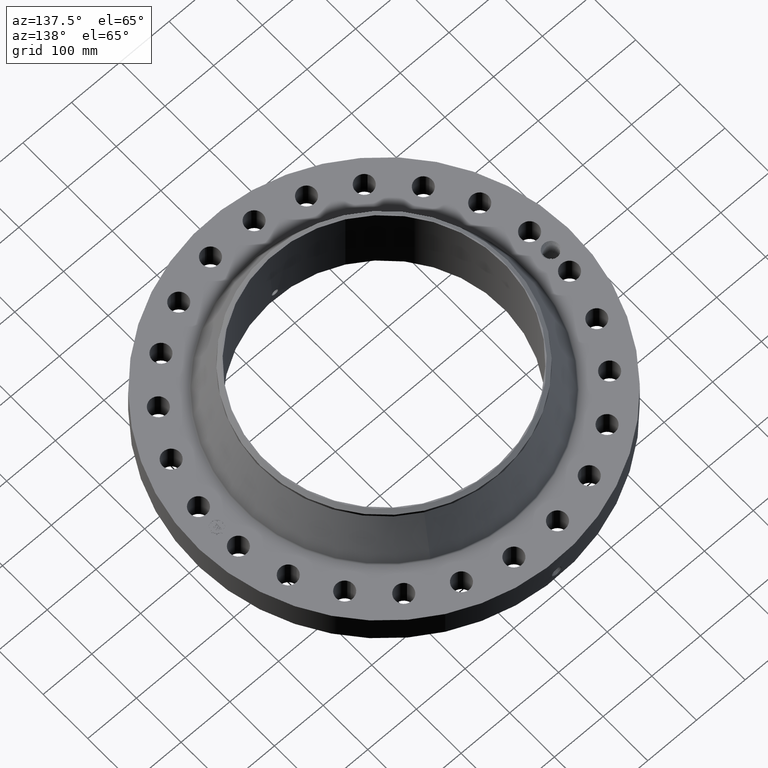
[diagram: clean part render]
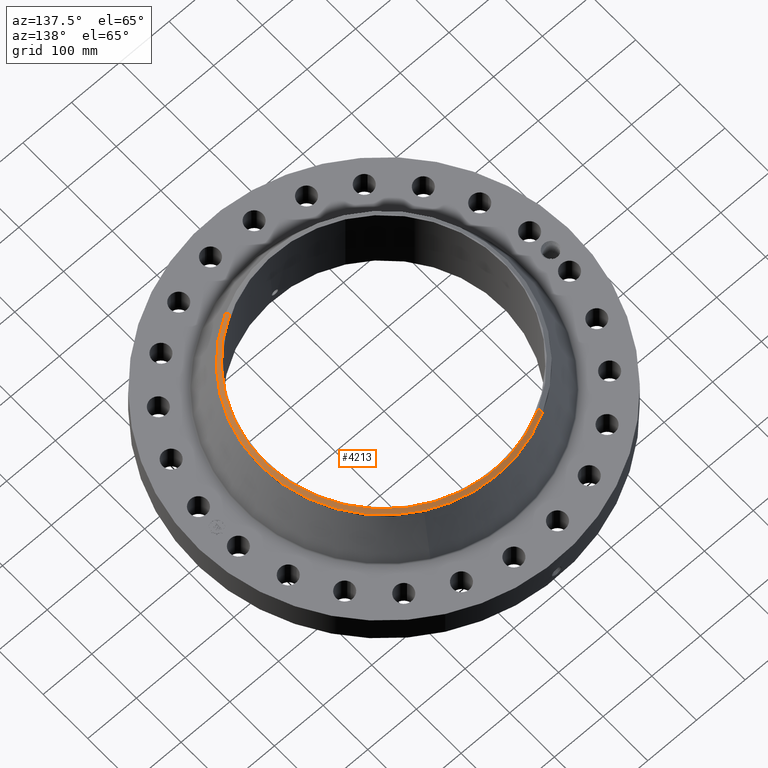
[diagram: same view with one face highlighted and labeled with its STEP entity id]
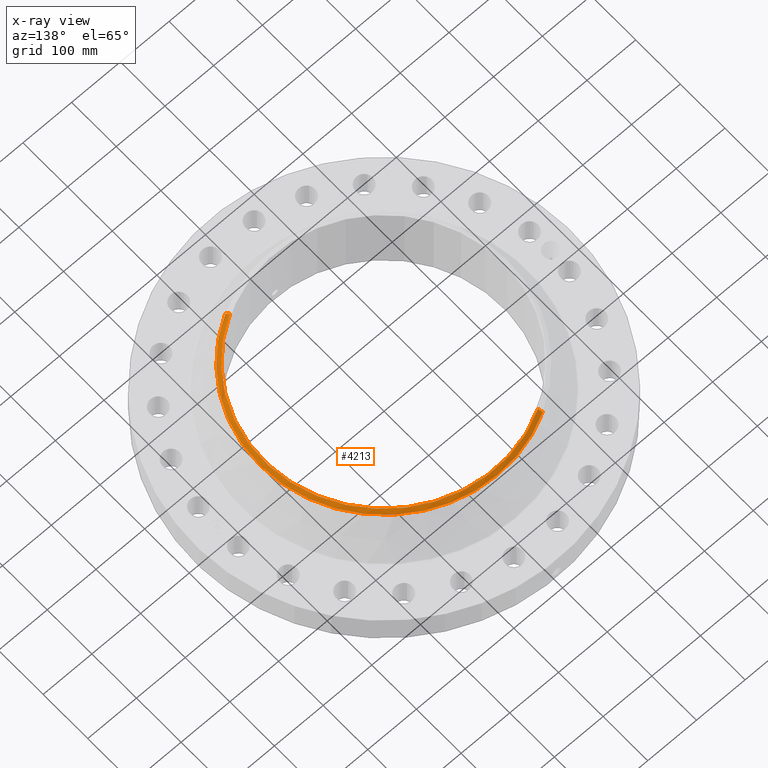
[diagram: x-ray of the same camera — body ghosted, the highlighted face saturated]
A machine part, auxiliary view. The second image highlights one B-rep face of the part: STEP entity #4213.
The next image is the same camera in x-ray: the body ghosted, the highlighted face saturated — about 0% of this face is hidden behind the body in this view.
In plain terms, the highlighted conical surface has half-angle 52.5 deg.
Its self-contained STEP definition (entity closure, byte-faithful):
#3350=AXIS2_PLACEMENT_3D('Circle Axis2P3D',#3348,#3349,$) ;
#4158=AXIS2_PLACEMENT_3D('Cone Axis2P3D',#4155,#4156,#4157) ;
#4196=AXIS2_PLACEMENT_3D('Circle Axis2P3D',#4194,#4195,$) ;
#4203=AXIS2_PLACEMENT_3D('Circle Axis2P3D',#4201,#4202,$) ;
#3348=CARTESIAN_POINT('Axis2P3D Location',(0.,0.,6.44000000003)) ;
#3352=CARTESIAN_POINT('Vertex',(4.65222085149,-8.51583314735,6.44000000003)) ;
#3354=CARTESIAN_POINT('Vertex',(-4.65222085149,8.51583314735,6.44000000003)) ;
#4155=CARTESIAN_POINT('Axis2P3D Location',(0.,0.,6.44000000003)) ;
#4160=CARTESIAN_POINT('Line Origine',(4.72323811878,-8.64582938315,6.32633591372)) ;
#4164=CARTESIAN_POINT('Vertex',(4.79425538606,-8.77582561894,6.2126718274)) ;
#4167=CARTESIAN_POINT('Line Origine',(-4.72323811878,8.64582938315,6.32633591372)) ;
#4171=CARTESIAN_POINT('Vertex',(-4.79425538606,8.77582561894,6.2126718274)) ;
#4194=CARTESIAN_POINT('Axis2P3D Location',(0.,0.,6.2126718274)) ;
#4198=CARTESIAN_POINT('Vertex',(4.79425538606,8.77582561894,6.2126718274)) ;
#4201=CARTESIAN_POINT('Axis2P3D Location',(0.,0.,6.2126718274)) ;
#3349=DIRECTION('Axis2P3D Direction',(0.,0.,-0.0393700787402)) ;
#4156=DIRECTION('Axis2P3D Direction',(-0.,-0.,-0.0393700787402)) ;
#4157=DIRECTION('Axis2P3D XDirection',(-0.0188750212049,0.0345504945626,0.)) ;
#4161=DIRECTION('Vector Direction',(0.014974561121,-0.02741075027,-0.023966985394)) ;
#4168=DIRECTION('Vector Direction',(-0.014974561121,0.02741075027,-0.023966985394)) ;
#4195=DIRECTION('Axis2P3D Direction',(0.,0.,-0.0393700787402)) ;
#4202=DIRECTION('Axis2P3D Direction',(0.,0.,-0.0393700787402)) ;
#4162=VECTOR('Line Direction',#4161,0.0393700787402) ;
#4169=VECTOR('Line Direction',#4168,0.0393700787402) ;
#4207=ORIENTED_EDGE('',*,*,#4173,.F.) ;
#4208=ORIENTED_EDGE('',*,*,#3356,.F.) ;
#4209=ORIENTED_EDGE('',*,*,#4166,.T.) ;
#4210=ORIENTED_EDGE('',*,*,#4200,.T.) ;
#4211=ORIENTED_EDGE('',*,*,#4205,.F.) ;
#4213=ADVANCED_FACE('PartBody',(#4212),#4159,.T.) ;
#3351=CIRCLE('generated circle',#3350,9.70374015752) ;
#4197=CIRCLE('generated circle',#4196,10.) ;
#4204=CIRCLE('generated circle',#4203,10.) ;
#4159=CONICAL_SURFACE('Cone',#4158,9.70374015752,0.916297857297) ;
#3356=EDGE_CURVE('',#3353,#3355,#3351,.F.) ;
#4166=EDGE_CURVE('',#3353,#4165,#4163,.T.) ;
#4173=EDGE_CURVE('',#3355,#4172,#4170,.T.) ;
#4200=EDGE_CURVE('',#4165,#4199,#4197,.F.) ;
#4205=EDGE_CURVE('',#4172,#4199,#4204,.T.) ;
#4206=EDGE_LOOP('',(#4207,#4208,#4209,#4210,#4211)) ;
#4212=FACE_OUTER_BOUND('',#4206,.T.) ;
#4163=LINE('Line',#4160,#4162) ;
#4170=LINE('Line',#4167,#4169) ;
#3353=VERTEX_POINT('',#3352) ;
#3355=VERTEX_POINT('',#3354) ;
#4165=VERTEX_POINT('',#4164) ;
#4172=VERTEX_POINT('',#4171) ;
#4199=VERTEX_POINT('',#4198) ;